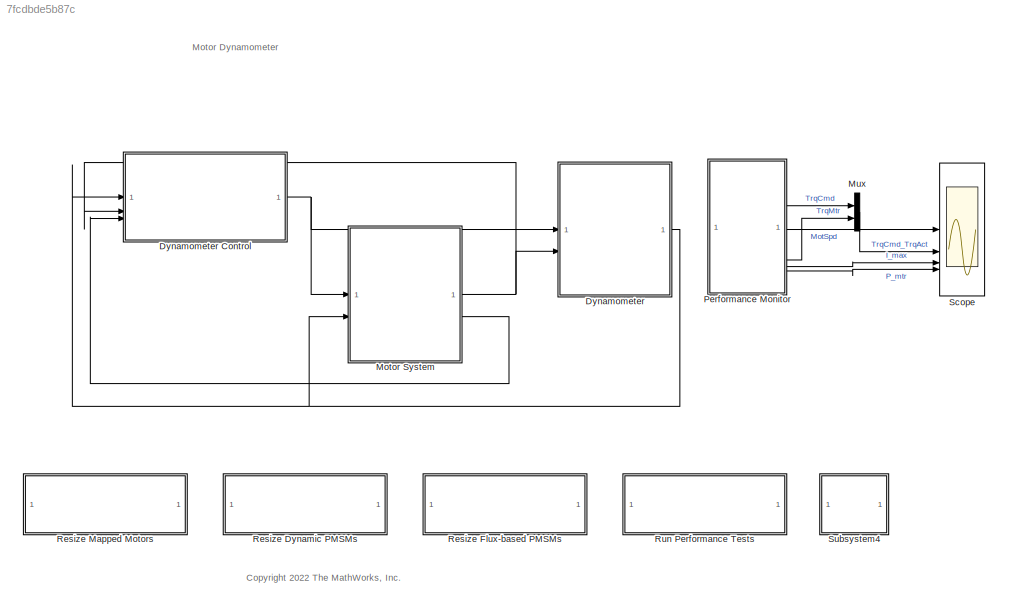
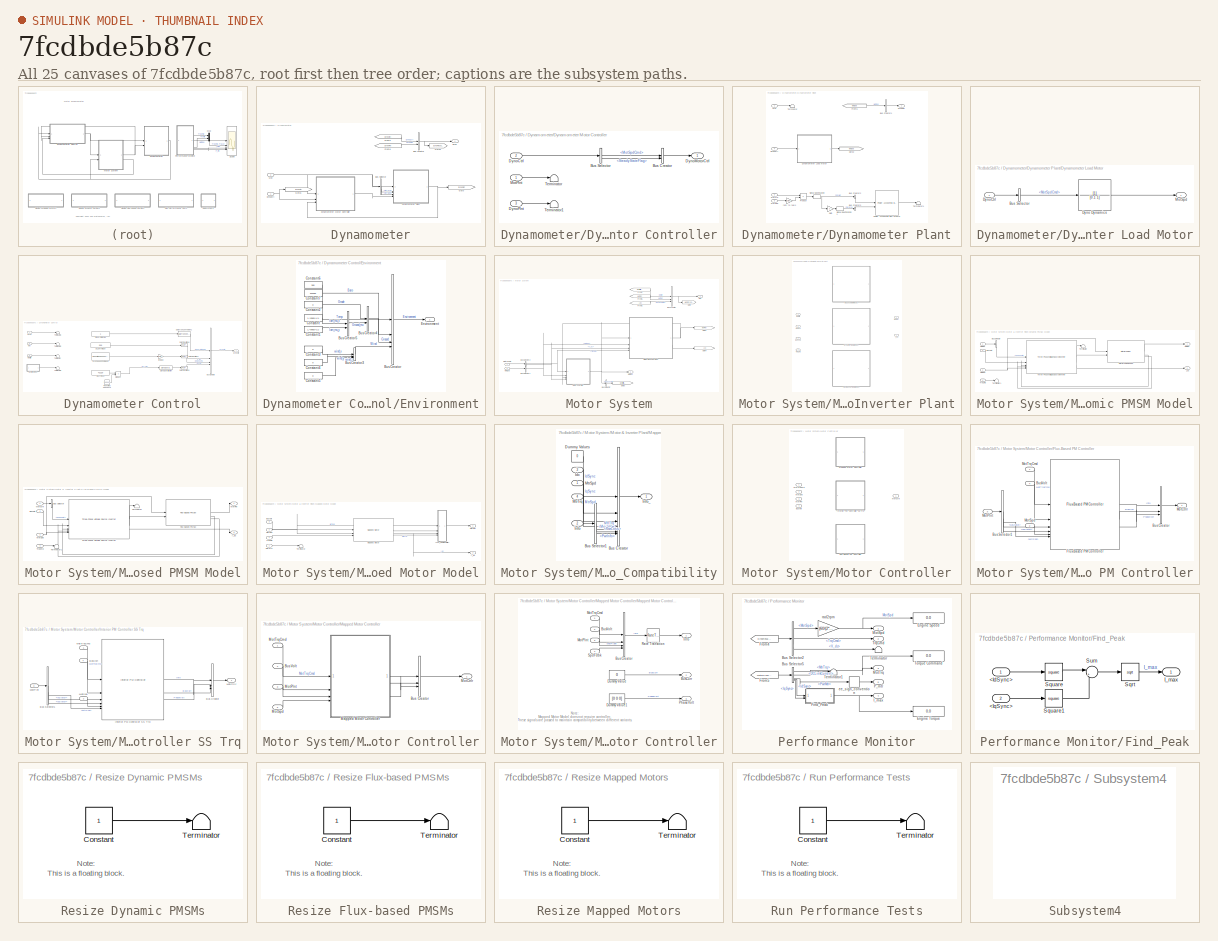
[diagram: thumbnail index - all 25 canvases of the model, root first then tree order]
MODEL slx_7fcdbde5b87c
KIND model
CONFIG AbsTol = auto
CONFIG EnableMultiTasking = off
CONFIG FixedStep = auto
CONFIG MaxStep = auto
CONFIG MinStep = auto
CONFIG RelTol = 1e-3
CONFIG SampleTimeConstraint = Unconstrained
CONFIG SolverName = VariableStepAuto
CONFIG StartTime = 0.0
CONFIG StopTime = 96
BLOCK [SubSystem] Dynamometer
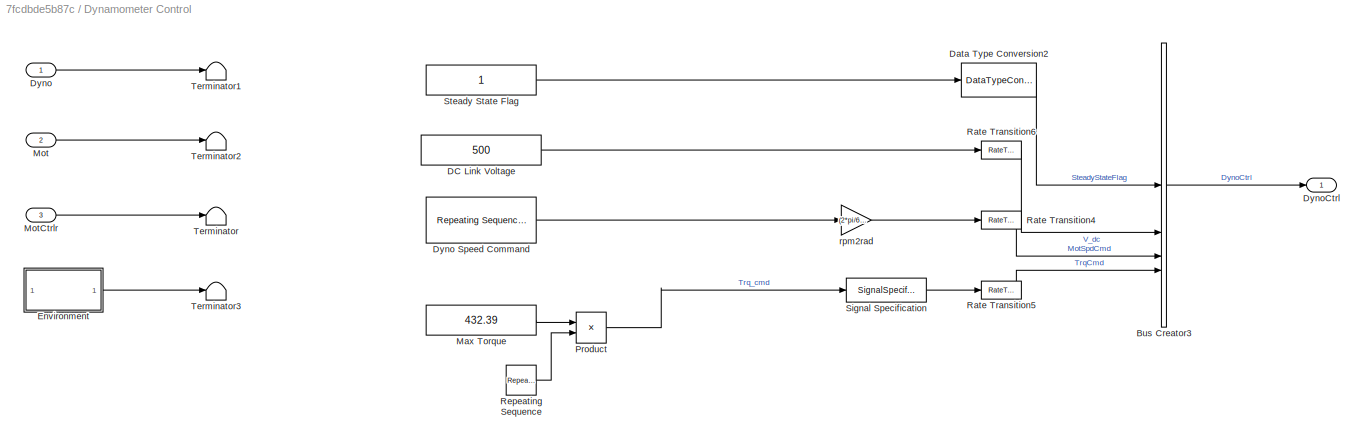
BLOCK [SubSystem] Dynamometer Control
  VariantControl = CalThrWg
BLOCK [BusCreator] Dynamometer Control/Bus Creator3
  DisplayOption = bar
  InheritFromInputs = on
  Inputs = 4
BLOCK [Constant] Dynamometer Control/DC Link Voltage
  Value = 500
BLOCK [DataTypeConversion] Dynamometer Control/Data Type Conversion2
  RndMeth = Floor
  SaturateOnIntegerOverflow = off
BLOCK [Inport] Dynamometer Control/Dyno
BLOCK [Reference] Dynamometer Control/Dyno Speed Command  REF=simulink/Sources/Repeating
Sequence
Stair
  SourceBlock = simulink/Sources/Repeating\nSequence\nStair
  SourceType = Repeating Sequence Stair
BLOCK [Outport] Dynamometer Control/DynoCtrl
  VectorParamsAs1DForOutWhenUnconnected = off
BLOCK [SubSystem] Dynamometer Control/Environment
BLOCK [BusCreator] Dynamometer Control/Environment/Bus Creator
  DisplayOption = bar
  InheritFromInputs = on
  Inputs = 4
BLOCK [BusCreator] Dynamometer Control/Environment/Bus Creator3
  DisplayOption = bar
  InheritFromInputs = on
  Inputs = 3
BLOCK [BusCreator] Dynamometer Control/Environment/Bus Creator4
  DisplayOption = bar
  InheritFromInputs = on
  Inputs = 2
BLOCK [BusCreator] Dynamometer Control/Environment/Bus Creator5
  DisplayOption = bar
  InheritFromInputs = on
  Inputs = 2
BLOCK [Constant] Dynamometer Control/Environment/Constant
  Value = 1.*ones(4,1)
BLOCK [Constant] Dynamometer Control/Environment/Constant1
  Value = 1.*ones(4,1)
BLOCK [Constant] Dynamometer Control/Environment/Constant2
  Value = 0
BLOCK [Constant] Dynamometer Control/Environment/Constant3
  Value = 0
BLOCK [Constant] Dynamometer Control/Environment/Constant4
  Value = 0
BLOCK [Constant] Dynamometer Control/Environment/Constant5
  Value = 0
BLOCK [Constant] Dynamometer Control/Environment/Constant6
  Value = 300
BLOCK [Constant] Dynamometer Control/Environment/Constant7
  Value = 101325
BLOCK [Outport] Dynamometer Control/Environment/Environment
  VectorParamsAs1DForOutWhenUnconnected = off
BLOCK [Constant] Dynamometer Control/Max Torque
  Value = 432.39
BLOCK [Inport] Dynamometer Control/Mot
  Port = 2
BLOCK [Inport] Dynamometer Control/MotCtrlr
  Port = 3
BLOCK [Product] Dynamometer Control/Product
BLOCK [RateTransition] Dynamometer Control/Rate Transition4
  Deterministic = off
BLOCK [RateTransition] Dynamometer Control/Rate Transition5
BLOCK [RateTransition] Dynamometer Control/Rate Transition6
  Deterministic = off
BLOCK [Reference] Dynamometer Control/Repeating Sequence  REF=simulink/Sources/Repeating
Sequence
  SourceBlock = simulink/Sources/Repeating\nSequence
  SourceType = Repeating table
BLOCK [SignalSpecification] Dynamometer Control/Signal Specification
  Unit = N*m
BLOCK [Constant] Dynamometer Control/Steady State Flag
BLOCK [Terminator] Dynamometer Control/Terminator
BLOCK [Terminator] Dynamometer Control/Terminator1
BLOCK [Terminator] Dynamometer Control/Terminator2
BLOCK [Terminator] Dynamometer Control/Terminator3
BLOCK [Gain] Dynamometer Control/rpm2rad
  Gain = (2*pi/60)
BLOCK [BusCreator] Dynamometer/Bus Creator
  DisplayOption = bar
  InheritFromInputs = on
  Inputs = 2
BLOCK [BusSelector] Dynamometer/Bus Selector
  OutputSignals = MotPlnt.MtrTrq,MotPlnt.MtrSpd
BLOCK [SubSystem] Dynamometer/Dynamometer Motor Controller
BLOCK [BusCreator] Dynamometer/Dynamometer Motor Controller/Bus Creator
  DisplayOption = bar
  InheritFromInputs = on
  Inputs = 2
BLOCK [BusSelector] Dynamometer/Dynamometer Motor Controller/Bus Selector
  OutputSignals = MotSpdCmd,SteadyStateFlag
BLOCK [Inport] Dynamometer/Dynamometer Motor Controller/DynoCtrl
  Port = 2
BLOCK [Outport] Dynamometer/Dynamometer Motor Controller/DynoMotorCtrl
  VectorParamsAs1DForOutWhenUnconnected = off
BLOCK [Inport] Dynamometer/Dynamometer Motor Controller/DynoPlnt
  Port = 3
BLOCK [Inport] Dynamometer/Dynamometer Motor Controller/MotPlnt
BLOCK [Terminator] Dynamometer/Dynamometer Motor Controller/Terminator
BLOCK [Terminator] Dynamometer/Dynamometer Motor Controller/Terminator1
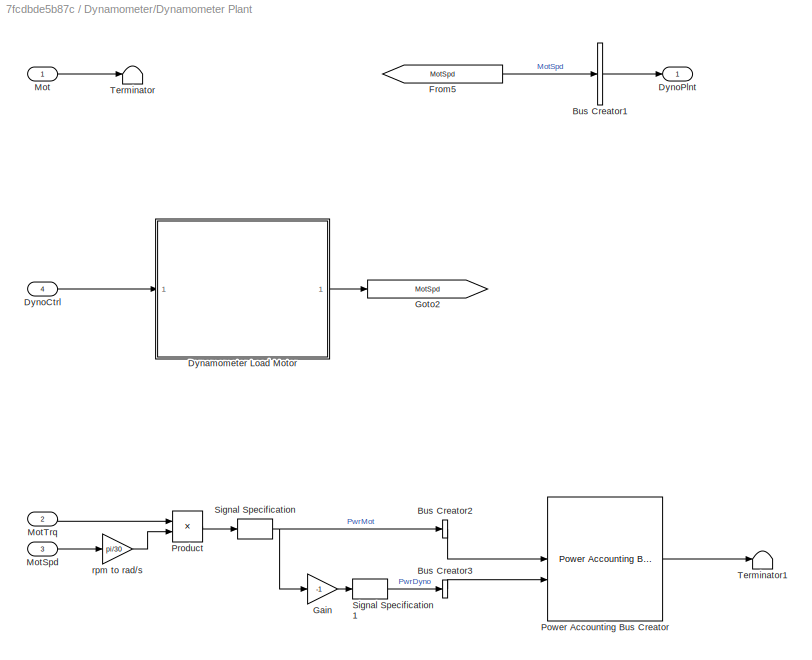
BLOCK [SubSystem] Dynamometer/Dynamometer Plant
BLOCK [BusCreator] Dynamometer/Dynamometer Plant/Bus Creator1
  DisplayOption = bar
  InheritFromInputs = on
  Inputs = 1
BLOCK [BusCreator] Dynamometer/Dynamometer Plant/Bus Creator2
  DisplayOption = bar
  InheritFromInputs = on
  Inputs = 1
BLOCK [BusCreator] Dynamometer/Dynamometer Plant/Bus Creator3
  DisplayOption = bar
  InheritFromInputs = on
  Inputs = 1
BLOCK [SubSystem] Dynamometer/Dynamometer Plant/Dynamometer Load Motor
BLOCK [BusSelector] Dynamometer/Dynamometer Plant/Dynamometer Load Motor/Bus Selector
  OutputSignals = MotSpdCmd
BLOCK [TransferFcn] Dynamometer/Dynamometer Plant/Dynamometer Load Motor/Dyno Dynamics
  Denominator = [0.1 1]
BLOCK [Inport] Dynamometer/Dynamometer Plant/Dynamometer Load Motor/DynoCtrl
BLOCK [Outport] Dynamometer/Dynamometer Plant/Dynamometer Load Motor/MotSpd
  VectorParamsAs1DForOutWhenUnconnected = off
BLOCK [Inport] Dynamometer/Dynamometer Plant/DynoCtrl
  Port = 4
BLOCK [Outport] Dynamometer/Dynamometer Plant/DynoPlnt
  VectorParamsAs1DForOutWhenUnconnected = off
BLOCK [From] Dynamometer/Dynamometer Plant/From5
  GotoTag = MotSpd
BLOCK [Gain] Dynamometer/Dynamometer Plant/Gain
  Gain = -1
BLOCK [Goto] Dynamometer/Dynamometer Plant/Goto2
  GotoTag = MotSpd
BLOCK [Inport] Dynamometer/Dynamometer Plant/Mot
BLOCK [Inport] Dynamometer/Dynamometer Plant/MotSpd 
  Port = 3
BLOCK [Inport] Dynamometer/Dynamometer Plant/MotTrq
  Port = 2
BLOCK [Reference] Dynamometer/Dynamometer Plant/Power Accounting Bus Creator  REF=autolibpowerinfoutils/Power Accounting Bus Creator
  SourceBlock = autolibpowerinfoutils/Power Accounting Bus Creator
  SourceType = Power Accounting Bus Creator
BLOCK [Product] Dynamometer/Dynamometer Plant/Product
BLOCK [SignalSpecification] Dynamometer/Dynamometer Plant/Signal Specification
  Unit = W
BLOCK [SignalSpecification] Dynamometer/Dynamometer Plant/Signal Specification1
  Unit = W
BLOCK [Terminator] Dynamometer/Dynamometer Plant/Terminator
BLOCK [Terminator] Dynamometer/Dynamometer Plant/Terminator1
BLOCK [Gain] Dynamometer/Dynamometer Plant/rpm to rad//s
  Gain = pi/30
BLOCK [Outport] Dynamometer/Dyno
  VectorParamsAs1DForOutWhenUnconnected = off
BLOCK [Inport] Dynamometer/DynoCtrl
BLOCK [From] Dynamometer/From6
  GotoTag = DynoCtrl
BLOCK [From] Dynamometer/From8
  GotoTag = DynoPlnt
BLOCK [Goto] Dynamometer/Goto
  GotoTag = DynoPlnt
BLOCK [Goto] Dynamometer/Goto1
  GotoTag = DynoCtrl
BLOCK [Goto] Dynamometer/Goto2
  GotoTag = DynoResults
  TagVisibility = global
BLOCK [Inport] Dynamometer/Mot
  Port = 2
BLOCK [SubSystem] Motor System
BLOCK [BusCreator] Motor System/Bus Creator
  DisplayOption = bar
  InheritFromInputs = on
  Inputs = 3
BLOCK [BusSelector] Motor System/Bus Selector
  OutputSignals = PhaseVolt
BLOCK [BusSelector] Motor System/Bus Selector1
  OutputSignals = DynoPlnt.MotSpd
BLOCK [BusSelector] Motor System/Bus Selector2
  OutputSignals = TrqCmd,V_dc
BLOCK [From] Motor System/From1
  GotoTag = MotCtrlrOutput
BLOCK [From] Motor System/From2
  GotoTag = I_dc
BLOCK [From] Motor System/From5
  GotoTag = MotPlnt
BLOCK [Goto] Motor System/Goto
  GotoTag = MotorSysResults
  TagVisibility = global
BLOCK [Goto] Motor System/Goto1
  GotoTag = MotPlnt
BLOCK [Goto] Motor System/Goto3
  GotoTag = MotCtrlrOutput
BLOCK [Goto] Motor System/Goto4
  GotoTag = I_dc
BLOCK [Outport] Motor System/Mot
  VectorParamsAs1DForOutWhenUnconnected = off
BLOCK [Outport] Motor System/MotCtrlr
  Port = 2
  VectorParamsAs1DForOutWhenUnconnected = off
BLOCK [Inport] Motor System/MotSpd
  Port = 2
BLOCK [Inport] Motor System/MotTrqCmd
  NameLocation = top
BLOCK [SubSystem] Motor System/Motor & Inverter Plant
  LabelModeActiveChoice = Flux-Based PMSM Model
  Variant = on
  VariantControlMode = label
BLOCK [Inport] Motor System/Motor & Inverter Plant/BusVolt
  Port = 3
BLOCK [SubSystem] Motor System/Motor & Inverter Plant/Dynamic PMSM Model
  VariantControl = Dynamic Motor Model
BLOCK [BusSelector] Motor System/Motor & Inverter Plant/Dynamic PMSM Model/Bus Selector
  OutputSignals = PhaseVolt
BLOCK [Inport] Motor System/Motor & Inverter Plant/Dynamic PMSM Model/BusVolt
  Port = 3
BLOCK [Outport] Motor System/Motor & Inverter Plant/Dynamic PMSM Model/I_dc
  Port = 2
  VectorParamsAs1DForOutWhenUnconnected = off
BLOCK [Reference] Motor System/Motor & Inverter Plant/Dynamic PMSM Model/Interior PMSM SS Spd  REF=autolibpmsminterior/Interior PMSM
  LibrarySourceBlock = autolibemachines/Interior PMSM
  SourceBlock = autolibpmsminterior/Interior PMSM
  SourceType = Interior PMSM
BLOCK [Inport] Motor System/Motor & Inverter Plant/Dynamic PMSM Model/MotCtrlr
BLOCK [Outport] Motor System/Motor & Inverter Plant/Dynamic PMSM Model/MotPlnt
  VectorParamsAs1DForOutWhenUnconnected = off
BLOCK [Inport] Motor System/Motor & Inverter Plant/Dynamic PMSM Model/MotSpd
  Port = 2
BLOCK [Terminator] Motor System/Motor & Inverter Plant/Dynamic PMSM Model/Terminator
BLOCK [Terminator] Motor System/Motor & Inverter Plant/Dynamic PMSM Model/Terminator1
BLOCK [Reference] Motor System/Motor & Inverter Plant/Dynamic PMSM Model/Three-Phase Voltage Source Inverter  REF=autolibinverter/Three-Phase Voltage Source Inverter
  SourceBlock = autolibinverter/Three-Phase Voltage Source Inverter
  SourceType = Three-Phase Voltage Source Inverter
BLOCK [Inport] Motor System/Motor & Inverter Plant/Dynamic PMSM Model/TrqCmd
  Port = 4
BLOCK [SubSystem] Motor System/Motor & Inverter Plant/Flux-Based PMSM Model
  VariantControl = Flux-Based PMSM Model
BLOCK [BusSelector] Motor System/Motor & Inverter Plant/Flux-Based PMSM Model/Bus Selector
  OutputSignals = PhaseVolt
BLOCK [Inport] Motor System/Motor & Inverter Plant/Flux-Based PMSM Model/BusVolt
  Port = 3
BLOCK [Reference] Motor System/Motor & Inverter Plant/Flux-Based PMSM Model/Flux-Based PMSM  REF=autolibfluxpmsm/Flux-Based PMSM
  SourceBlock = autolibfluxpmsm/Flux-Based PMSM
  SourceType = Flux-Based PMSM
BLOCK [Outport] Motor System/Motor & Inverter Plant/Flux-Based PMSM Model/I_dc
  Port = 2
  VectorParamsAs1DForOutWhenUnconnected = off
BLOCK [Inport] Motor System/Motor & Inverter Plant/Flux-Based PMSM Model/MotCtrlr
BLOCK [Outport] Motor System/Motor & Inverter Plant/Flux-Based PMSM Model/MotPlnt
  VectorParamsAs1DForOutWhenUnconnected = off
BLOCK [Inport] Motor System/Motor & Inverter Plant/Flux-Based PMSM Model/MotSpd
  Port = 2
BLOCK [Terminator] Motor System/Motor & Inverter Plant/Flux-Based PMSM Model/Terminator
BLOCK [Terminator] Motor System/Motor & Inverter Plant/Flux-Based PMSM Model/Terminator1
BLOCK [Reference] Motor System/Motor & Inverter Plant/Flux-Based PMSM Model/Three-Phase Voltage Source Inverter  REF=autolibinverter/Three-Phase Voltage Source Inverter
  SourceBlock = autolibinverter/Three-Phase Voltage Source Inverter
  SourceType = Three-Phase Voltage Source Inverter
BLOCK [Inport] Motor System/Motor & Inverter Plant/Flux-Based PMSM Model/TrqCmd
  Port = 4
BLOCK [Outport] Motor System/Motor & Inverter Plant/I_dc
  Port = 2
  VectorParamsAs1DForOutWhenUnconnected = off
BLOCK [SubSystem] Motor System/Motor & Inverter Plant/Mapped Motor Model
  VariantControl = Mapped Motor Model
BLOCK [Inport] Motor System/Motor & Inverter Plant/Mapped Motor Model/BusVolt
  Port = 3
BLOCK [Outport] Motor System/Motor & Inverter Plant/Mapped Motor Model/I_dc
  Port = 2
  VectorParamsAs1DForOutWhenUnconnected = off
BLOCK [SubSystem] Motor System/Motor & Inverter Plant/Mapped Motor Model/Info_Compatibility
BLOCK [BusCreator] Motor System/Motor & Inverter Plant/Mapped Motor Model/Info_Compatibility/Bus Creator
  DisplayOption = bar
  InheritFromInputs = on
  Inputs = 7
BLOCK [BusSelector] Motor System/Motor & Inverter Plant/Mapped Motor Model/Info_Compatibility/Bus Selector1
  OutputSignals = MechPwr,PwrLoss,PwrInfo
BLOCK [Constant] Motor System/Motor & Inverter Plant/Mapped Motor Model/Info_Compatibility/Dummy Values
  Value = 0
BLOCK [Inport] Motor System/Motor & Inverter Plant/Mapped Motor Model/Info_Compatibility/Idc
  Port = 3
BLOCK [Inport] Motor System/Motor & Inverter Plant/Mapped Motor Model/Info_Compatibility/Info
  Port = 2
BLOCK [Outport] Motor System/Motor & Inverter Plant/Mapped Motor Model/Info_Compatibility/Info_
BLOCK [Inport] Motor System/Motor & Inverter Plant/Mapped Motor Model/Info_Compatibility/MtrSpd
BLOCK [Inport] Motor System/Motor & Inverter Plant/Mapped Motor Model/Info_Compatibility/MtrTrq
  Port = 4
BLOCK [Reference] Motor System/Motor & Inverter Plant/Mapped Motor Model/Mapped Motor  REF=autolibmappedmotor/Mapped Motor
  SourceBlock = autolibmappedmotor/Mapped Motor
  SourceType = MappedMotor
BLOCK [Inport] Motor System/Motor & Inverter Plant/Mapped Motor Model/MotCtrlr
BLOCK [Outport] Motor System/Motor & Inverter Plant/Mapped Motor Model/MotPlnt
  VectorParamsAs1DForOutWhenUnconnected = off
BLOCK [Inport] Motor System/Motor & Inverter Plant/Mapped Motor Model/MotSpd
  Port = 2
BLOCK [Terminator] Motor System/Motor & Inverter Plant/Mapped Motor Model/Terminator
BLOCK [Inport] Motor System/Motor & Inverter Plant/Mapped Motor Model/TrqCmd
  Port = 4
BLOCK [Inport] Motor System/Motor & Inverter Plant/MotCtrlr
BLOCK [Outport] Motor System/Motor & Inverter Plant/MotPlnt
  VectorParamsAs1DForOutWhenUnconnected = off
BLOCK [Inport] Motor System/Motor & Inverter Plant/MotSpd
  Port = 2
BLOCK [Inport] Motor System/Motor & Inverter Plant/TrqCmd
  Port = 4
BLOCK [SubSystem] Motor System/Motor Controller
  LabelModeActiveChoice = Flux-Based PMSM Model
  Variant = on
  VariantControlMode = label
BLOCK [Inport] Motor System/Motor Controller/BusVolt
  Port = 4
BLOCK [SubSystem] Motor System/Motor Controller/Flux-Based PM Controller
  VariantControl = Flux-Based PMSM Model
BLOCK [BusCreator] Motor System/Motor Controller/Flux-Based PM Controller/Bus Creator
  DisplayOption = bar
  InheritFromInputs = on
  Inputs = 3
BLOCK [BusSelector] Motor System/Motor Controller/Flux-Based PM Controller/Bus Selector1
  OutputSignals = IaStator,IbStator,MtrPos
BLOCK [Inport] Motor System/Motor Controller/Flux-Based PM Controller/BusVolt
  Port = 4
BLOCK [Reference] Motor System/Motor Controller/Flux-Based PM Controller/Flux-Based PM Controller  REF=autolibmotorctrlr/Flux-Based PM Controller
  SourceBlock = autolibmotorctrlr/Flux-Based PM Controller
  SourceType = Flux-Based PM Controller
BLOCK [Outport] Motor System/Motor Controller/Flux-Based PM Controller/MotCtrlr
  VectorParamsAs1DForOutWhenUnconnected = off
BLOCK [Inport] Motor System/Motor Controller/Flux-Based PM Controller/MotPlnt
  Port = 3
BLOCK [Inport] Motor System/Motor Controller/Flux-Based PM Controller/MotSpd
  Port = 2
BLOCK [Inport] Motor System/Motor Controller/Flux-Based PM Controller/MotTrqCmd
BLOCK [SubSystem] Motor System/Motor Controller/Interior PM Controller SS Trq
  VariantControl = Dynamic Motor Model
BLOCK [BusCreator] Motor System/Motor Controller/Interior PM Controller SS Trq/Bus Creator
  DisplayOption = bar
  InheritFromInputs = on
  Inputs = 3
BLOCK [BusSelector] Motor System/Motor Controller/Interior PM Controller SS Trq/Bus Selector1
  OutputSignals = IaStator,IbStator,MtrPos
BLOCK [Inport] Motor System/Motor Controller/Interior PM Controller SS Trq/BusVolt
  Port = 4
BLOCK [Reference] Motor System/Motor Controller/Interior PM Controller SS Trq/Interior PM Controller SS Trq  REF=autolibmotorctrlr/Interior PM Controller
  SourceBlock = autolibmotorctrlr/Interior PM Controller
  SourceType = Interior PM Controller
BLOCK [Outport] Motor System/Motor Controller/Interior PM Controller SS Trq/MotCtrlr
  VectorParamsAs1DForOutWhenUnconnected = off
BLOCK [Inport] Motor System/Motor Controller/Interior PM Controller SS Trq/MotPlnt
  Port = 3
BLOCK [Inport] Motor System/Motor Controller/Interior PM Controller SS Trq/MotSpd
  Port = 2
BLOCK [Inport] Motor System/Motor Controller/Interior PM Controller SS Trq/MotTrqCmd
BLOCK [SubSystem] Motor System/Motor Controller/Mapped Motor Controller
  VariantControl = Mapped Motor Model
BLOCK [BusCreator] Motor System/Motor Controller/Mapped Motor Controller/Bus Creator
  DisplayOption = bar
  InheritFromInputs = on
  Inputs = 3
BLOCK [Inport] Motor System/Motor Controller/Mapped Motor Controller/BusVolt
  Port = 4
BLOCK [SubSystem] Motor System/Motor Controller/Mapped Motor Controller/Mapped Motor Controller
BLOCK [BusCreator] Motor System/Motor Controller/Mapped Motor Controller/Mapped Motor Controller/Bus Creator
  DisplayOption = bar
  InheritFromInputs = on
  Inputs = 4
BLOCK [Outport] Motor System/Motor Controller/Mapped Motor Controller/Mapped Motor Controller/BusCurr
  Port = 2
BLOCK [Inport] Motor System/Motor Controller/Mapped Motor Controller/Mapped Motor Controller/BusVolt
  Port = 2
BLOCK [Constant] Motor System/Motor Controller/Mapped Motor Controller/Mapped Motor Controller/Dummy Value
  SampleTime = -1
  Value = 0
BLOCK [Constant] Motor System/Motor Controller/Mapped Motor Controller/Mapped Motor Controller/Dummy Value1
  SampleTime = -1
  Value = [0 0 0]
BLOCK [Outport] Motor System/Motor Controller/Mapped Motor Controller/Mapped Motor Controller/Info
BLOCK [Inport] Motor System/Motor Controller/Mapped Motor Controller/Mapped Motor Controller/MotPlnt
  Port = 3
BLOCK [Inport] Motor System/Motor Controller/Mapped Motor Controller/Mapped Motor Controller/MotTrqCmd
BLOCK [Outport] Motor System/Motor Controller/Mapped Motor Controller/Mapped Motor Controller/PhaseVolt
  Port = 3
BLOCK [RateTransition] Motor System/Motor Controller/Mapped Motor Controller/Mapped Motor Controller/Rate Transition
  InitialCondition = -1
BLOCK [Inport] Motor System/Motor Controller/Mapped Motor Controller/Mapped Motor Controller/SpdFdbk
  Port = 4
BLOCK [Outport] Motor System/Motor Controller/Mapped Motor Controller/MotCtrlr
  VectorParamsAs1DForOutWhenUnconnected = off
BLOCK [Inport] Motor System/Motor Controller/Mapped Motor Controller/MotPlnt
  Port = 3
BLOCK [Inport] Motor System/Motor Controller/Mapped Motor Controller/MotSpd
  Port = 2
BLOCK [Inport] Motor System/Motor Controller/Mapped Motor Controller/MotTrqCmd
BLOCK [Outport] Motor System/Motor Controller/MotCtrlr
  VectorParamsAs1DForOutWhenUnconnected = off
BLOCK [Inport] Motor System/Motor Controller/MotPlnt
  Port = 3
BLOCK [Inport] Motor System/Motor Controller/MotSpd
  Port = 2
BLOCK [Inport] Motor System/Motor Controller/MotTrqCmd
BLOCK [Mux] Mux
  DisplayOption = bar
  Inputs = 2
BLOCK [SubSystem] Performance Monitor
BLOCK [BusSelector] Performance Monitor/Bus Selector2
  OutputSignals = DynoPlnt.MotSpd,DynoCtrl.TrqCmd,DynoCtrl.V_dc
BLOCK [BusSelector] Performance Monitor/Bus Selector5
  OutputSignals = MotPlnt.MtrTrq,DCLinkCurrent,MotPlnt.PwrInfo.PwrTrnsfrd.PwrMtr,MotPlnt.IdSync,MotPlnt.IqSync
BLOCK [Display] Performance Monitor/Engine Speed
  Decimation = 100
BLOCK [Display] Performance Monitor/Engine Torque
  Decimation = 100
BLOCK [SubSystem] Performance Monitor/Find_Peak
BLOCK [Inport] Performance Monitor/Find_Peak/<IdSync>
BLOCK [Inport] Performance Monitor/Find_Peak/<IqSync>
  Port = 2
BLOCK [Outport] Performance Monitor/Find_Peak/I_max
BLOCK [Sqrt] Performance Monitor/Find_Peak/Sqrt
BLOCK [Math] Performance Monitor/Find_Peak/Square
  Operator = square
BLOCK [Math] Performance Monitor/Find_Peak/Square1
  Operator = square
BLOCK [Sum] Performance Monitor/Find_Peak/Sum
  Inputs = |++
BLOCK [From] Performance Monitor/From4
  GotoTag = DynoResults
  TagVisibility = global
BLOCK [From] Performance Monitor/From5
  GotoTag = MotorSysResults
  TagVisibility = global
BLOCK [Outport] Performance Monitor/I_max
  Port = 4
  VectorParamsAs1DForOutWhenUnconnected = off
BLOCK [Outport] Performance Monitor/MotSpd
  VectorParamsAs1DForOutWhenUnconnected = off
BLOCK [Outport] Performance Monitor/MotTrq
  Port = 3
  VectorParamsAs1DForOutWhenUnconnected = off
BLOCK [Outport] Performance Monitor/P_mtr
  Port = 5
  VectorParamsAs1DForOutWhenUnconnected = off
BLOCK [Terminator] Performance Monitor/Terminator
BLOCK [Terminator] Performance Monitor/Terminator1
BLOCK [Display] Performance Monitor/Torque Command
  Decimation = 100
BLOCK [Outport] Performance Monitor/TrqCmd
  Port = 2
  VectorParamsAs1DForOutWhenUnconnected = off
BLOCK [UnaryMinus] Performance Monitor/ee_sign_convention
BLOCK [Gain] Performance Monitor/rad2rpm
  Gain = (60/(2*pi))
  NameLocation = top
BLOCK [SubSystem] Resize Dynamic PMSMs
  MaskHideContents = on
BLOCK [Constant] Resize Dynamic PMSMs/Constant
BLOCK [Terminator] Resize Dynamic PMSMs/Terminator
BLOCK [SubSystem] Resize Flux-based PMSMs
  MaskHideContents = on
BLOCK [Constant] Resize Flux-based PMSMs/Constant
BLOCK [Terminator] Resize Flux-based PMSMs/Terminator
BLOCK [SubSystem] Resize Mapped Motors
  MaskHideContents = on
BLOCK [Constant] Resize Mapped Motors/Constant
BLOCK [Terminator] Resize Mapped Motors/Terminator
BLOCK [SubSystem] Run Performance Tests
  MaskHideContents = on
  OpenFcn = % update simulation results\nsim(bdroot);\nautoicon('autoblksmotorresizeCb',gcb,'plotResults');
BLOCK [Constant] Run Performance Tests/Constant
BLOCK [Terminator] Run Performance Tests/Terminator
BLOCK [Scope] Scope
  Floating = off
  NumInputPorts = 4
  ScopeSpecificationString = Simulink.scopes.TimeScopeBlockCfg('CurrentConfiguration', extmgr.ConfigurationSet(extmgr.Configuration('Core','General UI',true),extmgr.Configuration('Core','Source UI',true),extmgr.Configuration('Sources','WiredSimulink',true),extmgr.Configuration('Visuals','Time Domain',true,'SerializedDisplays',{struct('MinYLimReal','-750.00000','MaxYLimReal','6750.00000','YLabelReal','','MinYLimMag',' 0.00000'...<+3503ch>
BLOCK [SubSystem] Subsystem4
  OpenFcn = helpview([docroot,'/toolbox/autoblks/helptargets.map'], 'motor_dyno_refapp')
ANNOTATION (root): Motor Dynamometer
ANNOTATION (root): <copyright redacted>
ANNOTATION Motor System/Motor Controller/Mapped Motor Controller/Mapped Motor Controller: Note: Mapped Motor Model does not require controller. These signals are passed to maintain compatibility between different variants.
ANNOTATION Resize Dynamic PMSMs: Note: This is a floating block.
ANNOTATION Resize Flux-based PMSMs: Note: This is a floating block.
ANNOTATION Resize Mapped Motors: Note: This is a floating block.
ANNOTATION Run Performance Tests: Note: This is a floating block.
LINE Dynamometer Control/Bus Creator3:1 -> Dynamometer Control/DynoCtrl:1
LINE Dynamometer Control/DC Link Voltage:1 -> Dynamometer Control/Rate Transition6:1
LINE Dynamometer Control/Data Type Conversion2:1 -> Dynamometer Control/Bus Creator3:1
LINE Dynamometer Control/Dyno Speed Command:1 -> Dynamometer Control/rpm2rad:1
LINE Dynamometer Control/Dyno:1 -> Dynamometer Control/Terminator1:1
LINE Dynamometer Control/Environment/Bus Creator3:1 -> Dynamometer Control/Environment/Bus Creator:4
LINE Dynamometer Control/Environment/Bus Creator4:1 -> Dynamometer Control/Environment/Bus Creator:3
LINE Dynamometer Control/Environment/Bus Creator5:1 -> Dynamometer Control/Environment/Bus Creator4:2
LINE Dynamometer Control/Environment/Bus Creator:1 -> Dynamometer Control/Environment/Environment:1
LINE Dynamometer Control/Environment/Constant1:1 -> Dynamometer Control/Environment/Bus Creator5:2
LINE Dynamometer Control/Environment/Constant2:1 -> Dynamometer Control/Environment/Bus Creator4:1
LINE Dynamometer Control/Environment/Constant3:1 -> Dynamometer Control/Environment/Bus Creator3:1
LINE Dynamometer Control/Environment/Constant4:1 -> Dynamometer Control/Environment/Bus Creator3:2
LINE Dynamometer Control/Environment/Constant5:1 -> Dynamometer Control/Environment/Bus Creator3:3
LINE Dynamometer Control/Environment/Constant6:1 -> Dynamometer Control/Environment/Bus Creator:1
LINE Dynamometer Control/Environment/Constant7:1 -> Dynamometer Control/Environment/Bus Creator:2
LINE Dynamometer Control/Environment/Constant:1 -> Dynamometer Control/Environment/Bus Creator5:1
LINE Dynamometer Control/Environment:1 -> Dynamometer Control/Terminator3:1
LINE Dynamometer Control/Max Torque:1 -> Dynamometer Control/Product:1
LINE Dynamometer Control/Mot:1 -> Dynamometer Control/Terminator2:1
LINE Dynamometer Control/MotCtrlr:1 -> Dynamometer Control/Terminator:1
LINE Dynamometer Control/Product:1 -> Dynamometer Control/Signal Specification:1
LINE Dynamometer Control/Rate Transition4:1 -> Dynamometer Control/Bus Creator3:3
LINE Dynamometer Control/Rate Transition5:1 -> Dynamometer Control/Bus Creator3:4
LINE Dynamometer Control/Rate Transition6:1 -> Dynamometer Control/Bus Creator3:2
LINE Dynamometer Control/Repeating Sequence:1 -> Dynamometer Control/Product:2
LINE Dynamometer Control/Signal Specification:1 -> Dynamometer Control/Rate Transition5:1
LINE Dynamometer Control/Steady State Flag:1 -> Dynamometer Control/Data Type Conversion2:1
LINE Dynamometer Control/rpm2rad:1 -> Dynamometer Control/Rate Transition4:1
NET Dynamometer Control:1 -> Dynamometer:1, Motor System:1
NET Dynamometer/Bus Creator:1 -> Dynamometer/Dyno:1, Dynamometer/Goto2:1
LINE Dynamometer/Bus Selector:1 -> Dynamometer/Dynamometer Plant:2
LINE Dynamometer/Bus Selector:2 -> Dynamometer/Dynamometer Plant:3
LINE Dynamometer/Dynamometer Motor Controller/Bus Creator:1 -> Dynamometer/Dynamometer Motor Controller/DynoMotorCtrl:1
LINE Dynamometer/Dynamometer Motor Controller/Bus Selector:1 -> Dynamometer/Dynamometer Motor Controller/Bus Creator:1
LINE Dynamometer/Dynamometer Motor Controller/Bus Selector:2 -> Dynamometer/Dynamometer Motor Controller/Bus Creator:2
LINE Dynamometer/Dynamometer Motor Controller/DynoCtrl:1 -> Dynamometer/Dynamometer Motor Controller/Bus Selector:1
LINE Dynamometer/Dynamometer Motor Controller/DynoPlnt:1 -> Dynamometer/Dynamometer Motor Controller/Terminator1:1
LINE Dynamometer/Dynamometer Motor Controller/MotPlnt:1 -> Dynamometer/Dynamometer Motor Controller/Terminator:1
LINE Dynamometer/Dynamometer Motor Controller:1 -> Dynamometer/Dynamometer Plant:4
LINE Dynamometer/Dynamometer Plant/Bus Creator1:1 -> Dynamometer/Dynamometer Plant/DynoPlnt:1
LINE Dynamometer/Dynamometer Plant/Bus Creator2:1 -> Dynamometer/Dynamometer Plant/Power Accounting Bus Creator:1
LINE Dynamometer/Dynamometer Plant/Bus Creator3:1 -> Dynamometer/Dynamometer Plant/Power Accounting Bus Creator:2
LINE Dynamometer/Dynamometer Plant/Dynamometer Load Motor/Bus Selector:1 -> Dynamometer/Dynamometer Plant/Dynamometer Load Motor/Dyno Dynamics:1
LINE Dynamometer/Dynamometer Plant/Dynamometer Load Motor/Dyno Dynamics:1 -> Dynamometer/Dynamometer Plant/Dynamometer Load Motor/MotSpd:1
LINE Dynamometer/Dynamometer Plant/Dynamometer Load Motor/DynoCtrl:1 -> Dynamometer/Dynamometer Plant/Dynamometer Load Motor/Bus Selector:1
LINE Dynamometer/Dynamometer Plant/Dynamometer Load Motor:1 -> Dynamometer/Dynamometer Plant/Goto2:1
LINE Dynamometer/Dynamometer Plant/DynoCtrl:1 -> Dynamometer/Dynamometer Plant/Dynamometer Load Motor:1
LINE Dynamometer/Dynamometer Plant/From5:1 -> Dynamometer/Dynamometer Plant/Bus Creator1:1
LINE Dynamometer/Dynamometer Plant/Gain:1 -> Dynamometer/Dynamometer Plant/Signal Specification1:1
LINE Dynamometer/Dynamometer Plant/Mot:1 -> Dynamometer/Dynamometer Plant/Terminator:1
LINE Dynamometer/Dynamometer Plant/MotSpd :1 -> Dynamometer/Dynamometer Plant/rpm to rad//s:1
LINE Dynamometer/Dynamometer Plant/MotTrq:1 -> Dynamometer/Dynamometer Plant/Product:1
LINE Dynamometer/Dynamometer Plant/Power Accounting Bus Creator:1 -> Dynamometer/Dynamometer Plant/Terminator1:1
LINE Dynamometer/Dynamometer Plant/Product:1 -> Dynamometer/Dynamometer Plant/Signal Specification:1
LINE Dynamometer/Dynamometer Plant/Signal Specification1:1 -> Dynamometer/Dynamometer Plant/Bus Creator3:1
NET Dynamometer/Dynamometer Plant/Signal Specification:1 -> Dynamometer/Dynamometer Plant/Bus Creator2:1, Dynamometer/Dynamometer Plant/Gain:1
LINE Dynamometer/Dynamometer Plant/rpm to rad//s:1 -> Dynamometer/Dynamometer Plant/Product:2
NET Dynamometer/Dynamometer Plant:1 -> Dynamometer/Dynamometer Motor Controller:3, Dynamometer/Goto:1
NET Dynamometer/DynoCtrl:1 -> Dynamometer/Dynamometer Motor Controller:2, Dynamometer/Goto1:1
LINE Dynamometer/From6:1 -> Dynamometer/Bus Creator:1
LINE Dynamometer/From8:1 -> Dynamometer/Bus Creator:2
NET Dynamometer/Mot:1 -> Dynamometer/Bus Selector:1, Dynamometer/Dynamometer Motor Controller:1, Dynamometer/Dynamometer Plant:1
NET Dynamometer:1 -> Dynamometer Control:1, Motor System:2
NET Motor System/Bus Creator:1 -> Motor System/Goto:1, Motor System/Mot:1
NET Motor System/Bus Selector1:1 -> Motor System/Motor & Inverter Plant:2, Motor System/Motor Controller:2
NET Motor System/Bus Selector2:1 -> Motor System/Motor & Inverter Plant:4, Motor System/Motor Controller:1
NET Motor System/Bus Selector2:2 -> Motor System/Motor & Inverter Plant:3, Motor System/Motor Controller:4
LINE Motor System/Bus Selector:1 -> Motor System/Goto3:1
LINE Motor System/From1:1 -> Motor System/Bus Creator:1
LINE Motor System/From2:1 -> Motor System/Bus Creator:3
LINE Motor System/From5:1 -> Motor System/Bus Creator:2
LINE Motor System/MotSpd:1 -> Motor System/Bus Selector1:1
LINE Motor System/MotTrqCmd:1 -> Motor System/Bus Selector2:1
LINE Motor System/Motor & Inverter Plant/Dynamic PMSM Model/Bus Selector:1 -> Motor System/Motor & Inverter Plant/Dynamic PMSM Model/Three-Phase Voltage Source Inverter:1
LINE Motor System/Motor & Inverter Plant/Dynamic PMSM Model/BusVolt:1 -> Motor System/Motor & Inverter Plant/Dynamic PMSM Model/Three-Phase Voltage Source Inverter:2
LINE Motor System/Motor & Inverter Plant/Dynamic PMSM Model/Interior PMSM SS Spd:1 -> Motor System/Motor & Inverter Plant/Dynamic PMSM Model/MotPlnt:1
LINE Motor System/Motor & Inverter Plant/Dynamic PMSM Model/Interior PMSM SS Spd:2 -> Motor System/Motor & Inverter Plant/Dynamic PMSM Model/Three-Phase Voltage Source Inverter:3
LINE Motor System/Motor & Inverter Plant/Dynamic PMSM Model/Interior PMSM SS Spd:3 -> Motor System/Motor & Inverter Plant/Dynamic PMSM Model/Three-Phase Voltage Source Inverter:4
LINE Motor System/Motor & Inverter Plant/Dynamic PMSM Model/MotCtrlr:1 -> Motor System/Motor & Inverter Plant/Dynamic PMSM Model/Bus Selector:1
NET Motor System/Motor & Inverter Plant/Dynamic PMSM Model/MotSpd:1 -> Motor System/Motor & Inverter Plant/Dynamic PMSM Model/Interior PMSM SS Spd:1, Motor System/Motor & Inverter Plant/Dynamic PMSM Model/Three-Phase Voltage Source Inverter:5
LINE Motor System/Motor & Inverter Plant/Dynamic PMSM Model/Three-Phase Voltage Source Inverter:1 -> Motor System/Motor & Inverter Plant/Dynamic PMSM Model/Terminator:1
LINE Motor System/Motor & Inverter Plant/Dynamic PMSM Model/Three-Phase Voltage Source Inverter:2 -> Motor System/Motor & Inverter Plant/Dynamic PMSM Model/Interior PMSM SS Spd:2
LINE Motor System/Motor & Inverter Plant/Dynamic PMSM Model/Three-Phase Voltage Source Inverter:3 -> Motor System/Motor & Inverter Plant/Dynamic PMSM Model/I_dc:1
LINE Motor System/Motor & Inverter Plant/Dynamic PMSM Model/TrqCmd:1 -> Motor System/Motor & Inverter Plant/Dynamic PMSM Model/Terminator1:1
LINE Motor System/Motor & Inverter Plant/Flux-Based PMSM Model/Bus Selector:1 -> Motor System/Motor & Inverter Plant/Flux-Based PMSM Model/Three-Phase Voltage Source Inverter:1
LINE Motor System/Motor & Inverter Plant/Flux-Based PMSM Model/BusVolt:1 -> Motor System/Motor & Inverter Plant/Flux-Based PMSM Model/Three-Phase Voltage Source Inverter:2
LINE Motor System/Motor & Inverter Plant/Flux-Based PMSM Model/Flux-Based PMSM:1 -> Motor System/Motor & Inverter Plant/Flux-Based PMSM Model/MotPlnt:1
LINE Motor System/Motor & Inverter Plant/Flux-Based PMSM Model/Flux-Based PMSM:2 -> Motor System/Motor & Inverter Plant/Flux-Based PMSM Model/Three-Phase Voltage Source Inverter:3
LINE Motor System/Motor & Inverter Plant/Flux-Based PMSM Model/Flux-Based PMSM:3 -> Motor System/Motor & Inverter Plant/Flux-Based PMSM Model/Three-Phase Voltage Source Inverter:4
LINE Motor System/Motor & Inverter Plant/Flux-Based PMSM Model/MotCtrlr:1 -> Motor System/Motor & Inverter Plant/Flux-Based PMSM Model/Bus Selector:1
NET Motor System/Motor & Inverter Plant/Flux-Based PMSM Model/MotSpd:1 -> Motor System/Motor & Inverter Plant/Flux-Based PMSM Model/Flux-Based PMSM:1, Motor System/Motor & Inverter Plant/Flux-Based PMSM Model/Three-Phase Voltage Source Inverter:5
LINE Motor System/Motor & Inverter Plant/Flux-Based PMSM Model/Three-Phase Voltage Source Inverter:1 -> Motor System/Motor & Inverter Plant/Flux-Based PMSM Model/Terminator:1
LINE Motor System/Motor & Inverter Plant/Flux-Based PMSM Model/Three-Phase Voltage Source Inverter:2 -> Motor System/Motor & Inverter Plant/Flux-Based PMSM Model/Flux-Based PMSM:2
LINE Motor System/Motor & Inverter Plant/Flux-Based PMSM Model/Three-Phase Voltage Source Inverter:3 -> Motor System/Motor & Inverter Plant/Flux-Based PMSM Model/I_dc:1
LINE Motor System/Motor & Inverter Plant/Flux-Based PMSM Model/TrqCmd:1 -> Motor System/Motor & Inverter Plant/Flux-Based PMSM Model/Terminator1:1
LINE Motor System/Motor & Inverter Plant/Mapped Motor Model/BusVolt:1 -> Motor System/Motor & Inverter Plant/Mapped Motor Model/Mapped Motor:1
LINE Motor System/Motor & Inverter Plant/Mapped Motor Model/Info_Compatibility/Bus Creator:1 -> Motor System/Motor & Inverter Plant/Mapped Motor Model/Info_Compatibility/Info_:1
LINE Motor System/Motor & Inverter Plant/Mapped Motor Model/Info_Compatibility/Bus Selector1:1 -> Motor System/Motor & Inverter Plant/Mapped Motor Model/Info_Compatibility/Bus Creator:5
LINE Motor System/Motor & Inverter Plant/Mapped Motor Model/Info_Compatibility/Bus Selector1:2 -> Motor System/Motor & Inverter Plant/Mapped Motor Model/Info_Compatibility/Bus Creator:6
LINE Motor System/Motor & Inverter Plant/Mapped Motor Model/Info_Compatibility/Bus Selector1:3 -> Motor System/Motor & Inverter Plant/Mapped Motor Model/Info_Compatibility/Bus Creator:7
LINE Motor System/Motor & Inverter Plant/Mapped Motor Model/Info_Compatibility/Dummy Values:1 -> Motor System/Motor & Inverter Plant/Mapped Motor Model/Info_Compatibility/Bus Creator:1
LINE Motor System/Motor & Inverter Plant/Mapped Motor Model/Info_Compatibility/Idc:1 -> Motor System/Motor & Inverter Plant/Mapped Motor Model/Info_Compatibility/Bus Creator:2
LINE Motor System/Motor & Inverter Plant/Mapped Motor Model/Info_Compatibility/Info:1 -> Motor System/Motor & Inverter Plant/Mapped Motor Model/Info_Compatibility/Bus Selector1:1
LINE Motor System/Motor & Inverter Plant/Mapped Motor Model/Info_Compatibility/MtrSpd:1 -> Motor System/Motor & Inverter Plant/Mapped Motor Model/Info_Compatibility/Bus Creator:3
LINE Motor System/Motor & Inverter Plant/Mapped Motor Model/Info_Compatibility/MtrTrq:1 -> Motor System/Motor & Inverter Plant/Mapped Motor Model/Info_Compatibility/Bus Creator:4
LINE Motor System/Motor & Inverter Plant/Mapped Motor Model/Info_Compatibility:1 -> Motor System/Motor & Inverter Plant/Mapped Motor Model/MotPlnt:1
LINE Motor System/Motor & Inverter Plant/Mapped Motor Model/Mapped Motor:1 -> Motor System/Motor & Inverter Plant/Mapped Motor Model/Info_Compatibility:2
NET Motor System/Motor & Inverter Plant/Mapped Motor Model/Mapped Motor:2 -> Motor System/Motor & Inverter Plant/Mapped Motor Model/I_dc:1, Motor System/Motor & Inverter Plant/Mapped Motor Model/Info_Compatibility:3
LINE Motor System/Motor & Inverter Plant/Mapped Motor Model/Mapped Motor:3 -> Motor System/Motor & Inverter Plant/Mapped Motor Model/Info_Compatibility:4
LINE Motor System/Motor & Inverter Plant/Mapped Motor Model/MotCtrlr:1 -> Motor System/Motor & Inverter Plant/Mapped Motor Model/Terminator:1
NET Motor System/Motor & Inverter Plant/Mapped Motor Model/MotSpd:1 -> Motor System/Motor & Inverter Plant/Mapped Motor Model/Info_Compatibility:1, Motor System/Motor & Inverter Plant/Mapped Motor Model/Mapped Motor:2
LINE Motor System/Motor & Inverter Plant/Mapped Motor Model/TrqCmd:1 -> Motor System/Motor & Inverter Plant/Mapped Motor Model/Mapped Motor:3
NET Motor System/Motor & Inverter Plant:1 -> Motor System/Goto1:1, Motor System/Motor Controller:3
LINE Motor System/Motor & Inverter Plant:2 -> Motor System/Goto4:1
LINE Motor System/Motor Controller/Flux-Based PM Controller/Bus Creator:1 -> Motor System/Motor Controller/Flux-Based PM Controller/MotCtrlr:1
LINE Motor System/Motor Controller/Flux-Based PM Controller/Bus Selector1:1 -> Motor System/Motor Controller/Flux-Based PM Controller/Flux-Based PM Controller:3
LINE Motor System/Motor Controller/Flux-Based PM Controller/Bus Selector1:2 -> Motor System/Motor Controller/Flux-Based PM Controller/Flux-Based PM Controller:4
LINE Motor System/Motor Controller/Flux-Based PM Controller/Bus Selector1:3 -> Motor System/Motor Controller/Flux-Based PM Controller/Flux-Based PM Controller:6
LINE Motor System/Motor Controller/Flux-Based PM Controller/BusVolt:1 -> Motor System/Motor Controller/Flux-Based PM Controller/Flux-Based PM Controller:2
LINE Motor System/Motor Controller/Flux-Based PM Controller/Flux-Based PM Controller:1 -> Motor System/Motor Controller/Flux-Based PM Controller/Bus Creator:1
LINE Motor System/Motor Controller/Flux-Based PM Controller/Flux-Based PM Controller:2 -> Motor System/Motor Controller/Flux-Based PM Controller/Bus Creator:2
LINE Motor System/Motor Controller/Flux-Based PM Controller/Flux-Based PM Controller:3 -> Motor System/Motor Controller/Flux-Based PM Controller/Bus Creator:3
LINE Motor System/Motor Controller/Flux-Based PM Controller/MotPlnt:1 -> Motor System/Motor Controller/Flux-Based PM Controller/Bus Selector1:1
LINE Motor System/Motor Controller/Flux-Based PM Controller/MotSpd:1 -> Motor System/Motor Controller/Flux-Based PM Controller/Flux-Based PM Controller:5
LINE Motor System/Motor Controller/Flux-Based PM Controller/MotTrqCmd:1 -> Motor System/Motor Controller/Flux-Based PM Controller/Flux-Based PM Controller:1
LINE Motor System/Motor Controller/Interior PM Controller SS Trq/Bus Creator:1 -> Motor System/Motor Controller/Interior PM Controller SS Trq/MotCtrlr:1
LINE Motor System/Motor Controller/Interior PM Controller SS Trq/Bus Selector1:1 -> Motor System/Motor Controller/Interior PM Controller SS Trq/Interior PM Controller SS Trq:3
LINE Motor System/Motor Controller/Interior PM Controller SS Trq/Bus Selector1:2 -> Motor System/Motor Controller/Interior PM Controller SS Trq/Interior PM Controller SS Trq:4
LINE Motor System/Motor Controller/Interior PM Controller SS Trq/Bus Selector1:3 -> Motor System/Motor Controller/Interior PM Controller SS Trq/Interior PM Controller SS Trq:6
LINE Motor System/Motor Controller/Interior PM Controller SS Trq/BusVolt:1 -> Motor System/Motor Controller/Interior PM Controller SS Trq/Interior PM Controller SS Trq:2
LINE Motor System/Motor Controller/Interior PM Controller SS Trq/Interior PM Controller SS Trq:1 -> Motor System/Motor Controller/Interior PM Controller SS Trq/Bus Creator:1
LINE Motor System/Motor Controller/Interior PM Controller SS Trq/Interior PM Controller SS Trq:2 -> Motor System/Motor Controller/Interior PM Controller SS Trq/Bus Creator:2
LINE Motor System/Motor Controller/Interior PM Controller SS Trq/Interior PM Controller SS Trq:3 -> Motor System/Motor Controller/Interior PM Controller SS Trq/Bus Creator:3
LINE Motor System/Motor Controller/Interior PM Controller SS Trq/MotPlnt:1 -> Motor System/Motor Controller/Interior PM Controller SS Trq/Bus Selector1:1
LINE Motor System/Motor Controller/Interior PM Controller SS Trq/MotSpd:1 -> Motor System/Motor Controller/Interior PM Controller SS Trq/Interior PM Controller SS Trq:5
LINE Motor System/Motor Controller/Interior PM Controller SS Trq/MotTrqCmd:1 -> Motor System/Motor Controller/Interior PM Controller SS Trq/Interior PM Controller SS Trq:1
LINE Motor System/Motor Controller/Mapped Motor Controller/Bus Creator:1 -> Motor System/Motor Controller/Mapped Motor Controller/MotCtrlr:1
LINE Motor System/Motor Controller/Mapped Motor Controller/BusVolt:1 -> Motor System/Motor Controller/Mapped Motor Controller/Mapped Motor Controller:2
LINE Motor System/Motor Controller/Mapped Motor Controller/Mapped Motor Controller/Bus Creator:1 -> Motor System/Motor Controller/Mapped Motor Controller/Mapped Motor Controller/Rate Transition:1
LINE Motor System/Motor Controller/Mapped Motor Controller/Mapped Motor Controller/BusVolt:1 -> Motor System/Motor Controller/Mapped Motor Controller/Mapped Motor Controller/Bus Creator:2
LINE Motor System/Motor Controller/Mapped Motor Controller/Mapped Motor Controller/Dummy Value1:1 -> Motor System/Motor Controller/Mapped Motor Controller/Mapped Motor Controller/PhaseVolt:1
LINE Motor System/Motor Controller/Mapped Motor Controller/Mapped Motor Controller/Dummy Value:1 -> Motor System/Motor Controller/Mapped Motor Controller/Mapped Motor Controller/BusCurr:1
LINE Motor System/Motor Controller/Mapped Motor Controller/Mapped Motor Controller/MotPlnt:1 -> Motor System/Motor Controller/Mapped Motor Controller/Mapped Motor Controller/Bus Creator:3
LINE Motor System/Motor Controller/Mapped Motor Controller/Mapped Motor Controller/MotTrqCmd:1 -> Motor System/Motor Controller/Mapped Motor Controller/Mapped Motor Controller/Bus Creator:1
LINE Motor System/Motor Controller/Mapped Motor Controller/Mapped Motor Controller/Rate Transition:1 -> Motor System/Motor Controller/Mapped Motor Controller/Mapped Motor Controller/Info:1
LINE Motor System/Motor Controller/Mapped Motor Controller/Mapped Motor Controller/SpdFdbk:1 -> Motor System/Motor Controller/Mapped Motor Controller/Mapped Motor Controller/Bus Creator:4
LINE Motor System/Motor Controller/Mapped Motor Controller/Mapped Motor Controller:1 -> Motor System/Motor Controller/Mapped Motor Controller/Bus Creator:1
LINE Motor System/Motor Controller/Mapped Motor Controller/Mapped Motor Controller:2 -> Motor System/Motor Controller/Mapped Motor Controller/Bus Creator:2
LINE Motor System/Motor Controller/Mapped Motor Controller/Mapped Motor Controller:3 -> Motor System/Motor Controller/Mapped Motor Controller/Bus Creator:3
LINE Motor System/Motor Controller/Mapped Motor Controller/MotPlnt:1 -> Motor System/Motor Controller/Mapped Motor Controller/Mapped Motor Controller:3
LINE Motor System/Motor Controller/Mapped Motor Controller/MotSpd:1 -> Motor System/Motor Controller/Mapped Motor Controller/Mapped Motor Controller:4
LINE Motor System/Motor Controller/Mapped Motor Controller/MotTrqCmd:1 -> Motor System/Motor Controller/Mapped Motor Controller/Mapped Motor Controller:1
NET Motor System/Motor Controller:1 -> Motor System/Bus Selector:1, Motor System/MotCtrlr:1, Motor System/Motor & Inverter Plant:1
NET Motor System:1 -> Dynamometer Control:2, Dynamometer:2
LINE Motor System:2 -> Dynamometer Control:3
LINE Mux:1 -> Scope:2
LINE Performance Monitor/Bus Selector2:1 -> Performance Monitor/rad2rpm:1
LINE Performance Monitor/Bus Selector2:2 -> Performance Monitor/TrqCmd:1
LINE Performance Monitor/Bus Selector2:3 -> Performance Monitor/Terminator:1
NET Performance Monitor/Bus Selector5:1 -> Performance Monitor/MotTrq:1, Performance Monitor/Torque Command:1
LINE Performance Monitor/Bus Selector5:2 -> Performance Monitor/Terminator1:1
LINE Performance Monitor/Bus Selector5:3 -> Performance Monitor/ee_sign_convention:1
LINE Performance Monitor/Bus Selector5:4 -> Performance Monitor/Find_Peak:1
LINE Performance Monitor/Bus Selector5:5 -> Performance Monitor/Find_Peak:2
LINE Performance Monitor/Find_Peak/<IdSync>:1 -> Performance Monitor/Find_Peak/Square:1
LINE Performance Monitor/Find_Peak/<IqSync>:1 -> Performance Monitor/Find_Peak/Square1:1
LINE Performance Monitor/Find_Peak/Sqrt:1 -> Performance Monitor/Find_Peak/I_max:1
LINE Performance Monitor/Find_Peak/Square1:1 -> Performance Monitor/Find_Peak/Sum:2
LINE Performance Monitor/Find_Peak/Square:1 -> Performance Monitor/Find_Peak/Sum:1
LINE Performance Monitor/Find_Peak/Sum:1 -> Performance Monitor/Find_Peak/Sqrt:1
NET Performance Monitor/Find_Peak:1 -> Performance Monitor/Engine Torque:1, Performance Monitor/I_max:1
LINE Performance Monitor/From4:1 -> Performance Monitor/Bus Selector2:1
LINE Performance Monitor/From5:1 -> Performance Monitor/Bus Selector5:1
LINE Performance Monitor/ee_sign_convention:1 -> Performance Monitor/P_mtr:1
NET Performance Monitor/rad2rpm:1 -> Performance Monitor/Engine Speed:1, Performance Monitor/MotSpd:1
LINE Performance Monitor:1 -> Scope:1
LINE Performance Monitor:2 -> Mux:1
LINE Performance Monitor:3 -> Mux:2
LINE Performance Monitor:4 -> Scope:3
LINE Performance Monitor:5 -> Scope:4
LINE Resize Dynamic PMSMs/Constant:1 -> Resize Dynamic PMSMs/Terminator:1
LINE Resize Flux-based PMSMs/Constant:1 -> Resize Flux-based PMSMs/Terminator:1
LINE Resize Mapped Motors/Constant:1 -> Resize Mapped Motors/Terminator:1
LINE Run Performance Tests/Constant:1 -> Run Performance Tests/Terminator:1
note: NET lines group one-source signal fan-out (src -> all destinations, sorted); 1:1 wires keep LINE
